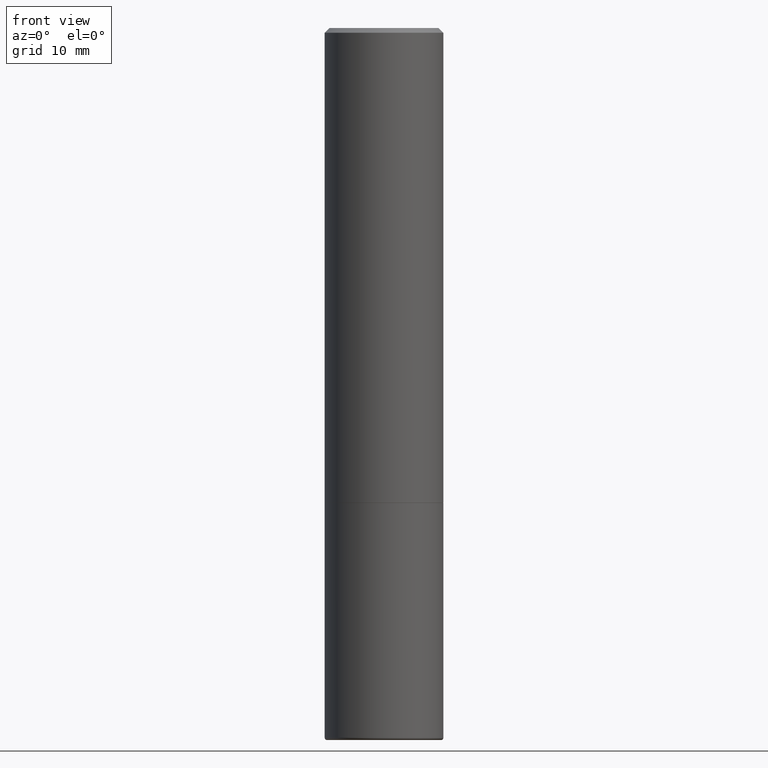
[diagram: clean part render]
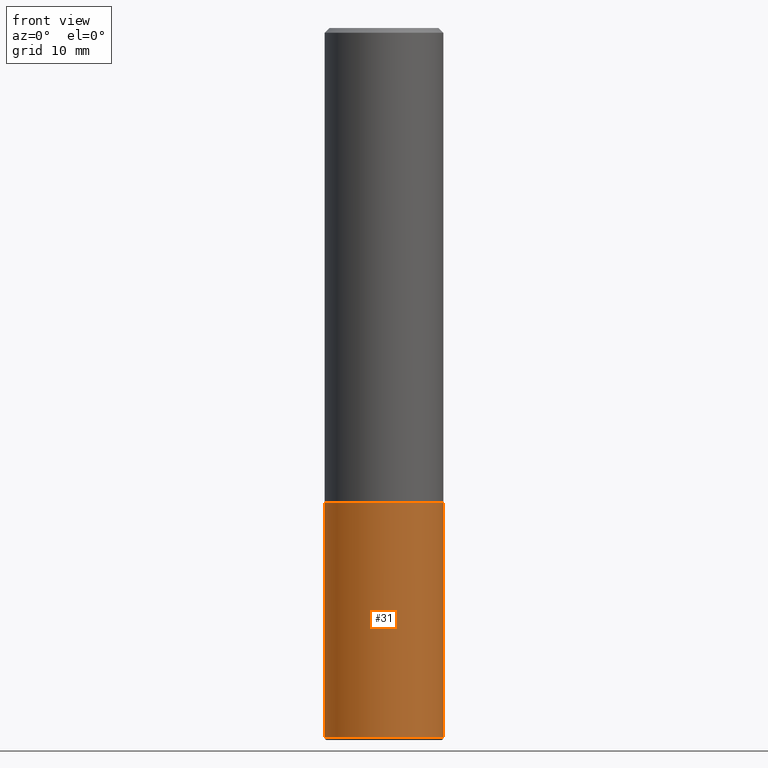
[diagram: same view with one face highlighted and labeled with its STEP entity id]
A machine part, front view. The second image highlights one B-rep face of the part: STEP entity #31.
In plain terms, the highlighted cylindrical surface (partial cylindrical patch) has radius 6.35 mm, axis along (-0, 0, 1).
Its self-contained STEP definition (entity closure, byte-faithful):
#17 = CARTESIAN_POINT ( 'NONE',  ( 0.2499999999999998890, -1.218526987256257138E-14, -2.990000000000000213 ) ) ;
#27 = ORIENTED_EDGE ( 'NONE', *, *, #408, .T. ) ;
#31 = ADVANCED_FACE ( 'NONE', ( #121 ), #80, .T. ) ;
#66 = DIRECTION ( 'NONE',  ( -2.445468806185136597E-29, 3.491481338843145583E-15, 1.000000000000000000 ) ) ;
#71 = AXIS2_PLACEMENT_3D ( 'NONE', #250, #318, #392 ) ;
#75 = DIRECTION ( 'NONE',  ( 1.000000000000000000, -6.982962677686266711E-15, 0.000000000000000000 ) ) ;
#80 = CYLINDRICAL_SURFACE ( 'NONE', #316, 0.2500000000000000000 ) ;
#91 = CIRCLE ( 'NONE', #71, 0.2500000000000000000 ) ;
#95 = VECTOR ( 'NONE', #97, 39.37007874015748143 ) ;
#97 = DIRECTION ( 'NONE',  ( -2.445468806185136877E-29, 3.491481338843145188E-15, 1.000000000000000000 ) ) ;
#104 = VERTEX_POINT ( 'NONE', #260 ) ;
#114 = EDGE_CURVE ( 'NONE', #231, #248, #131, .T. ) ;
#121 = FACE_OUTER_BOUND ( 'NONE', #331, .T. ) ;
#129 = CARTESIAN_POINT ( 'NONE',  ( -0.2499999999999998890, -8.663172363740755817E-15, -2.990000000000000213 ) ) ;
#131 = LINE ( 'NONE', #333, #95 ) ;
#161 = LINE ( 'NONE', #401, #211 ) ;
#194 = DIRECTION ( 'NONE',  ( 1.000000000000000000, -6.982962677686266711E-15, 4.876176775795935793E-29 ) ) ;
#205 = EDGE_CURVE ( 'NONE', #305, #104, #161, .T. ) ;
#210 = DIRECTION ( 'NONE',  ( -2.445468806185136597E-29, 3.491481338843145583E-15, 1.000000000000000000 ) ) ;
#211 = VECTOR ( 'NONE', #362, 39.37007874015748143 ) ;
#213 = ORIENTED_EDGE ( 'NONE', *, *, #205, .T. ) ;
#231 = VERTEX_POINT ( 'NONE', #129 ) ;
#239 = ORIENTED_EDGE ( 'NONE', *, *, #114, .F. ) ;
#248 = VERTEX_POINT ( 'NONE', #258 ) ;
#250 = CARTESIAN_POINT ( 'NONE',  ( 7.311951730493558245E-29, -1.043952920314100628E-14, -2.990000000000000213 ) ) ;
#258 = CARTESIAN_POINT ( 'NONE',  ( -0.2500000000000000000, -6.934889101013398653E-15, -2.000000000000000444 ) ) ;
#260 = CARTESIAN_POINT ( 'NONE',  ( 0.2500000000000000000, -8.728703347107858632E-15, -2.000000000000000444 ) ) ;
#268 = ORIENTED_EDGE ( 'NONE', *, *, #353, .F. ) ;
#273 = CIRCLE ( 'NONE', #414, 0.2500000000000000000 ) ;
#303 = CARTESIAN_POINT ( 'NONE',  ( 4.890937612370273754E-29, -6.982962677686291954E-15, -2.000000000000000444 ) ) ;
#305 = VERTEX_POINT ( 'NONE', #17 ) ;
#316 = AXIS2_PLACEMENT_3D ( 'NONE', #394, #66, #194 ) ;
#318 = DIRECTION ( 'NONE',  ( -2.445468806185136597E-29, 3.491481338843145583E-15, 1.000000000000000000 ) ) ;
#331 = EDGE_LOOP ( 'NONE', ( #239, #27, #213, #268 ) ) ;
#333 = CARTESIAN_POINT ( 'NONE',  ( -0.2500000000000000000, 1.776356839400250465E-15, -1.229733772563726445E-29 ) ) ;
#353 = EDGE_CURVE ( 'NONE', #248, #104, #273, .T. ) ;
#362 = DIRECTION ( 'NONE',  ( -2.445468806185136877E-29, 3.491481338843145188E-15, 1.000000000000000000 ) ) ;
#392 = DIRECTION ( 'NONE',  ( 1.000000000000000000, -6.982962677686262766E-15, 0.000000000000000000 ) ) ;
#394 = CARTESIAN_POINT ( 'NONE',  ( 0.000000000000000000, 0.000000000000000000, 0.000000000000000000 ) ) ;
#401 = CARTESIAN_POINT ( 'NONE',  ( 0.2500000000000000000, -1.745740669421566678E-15, 1.219044193948983948E-29 ) ) ;
#408 = EDGE_CURVE ( 'NONE', #231, #305, #91, .T. ) ;
#414 = AXIS2_PLACEMENT_3D ( 'NONE', #303, #210, #75 ) ;